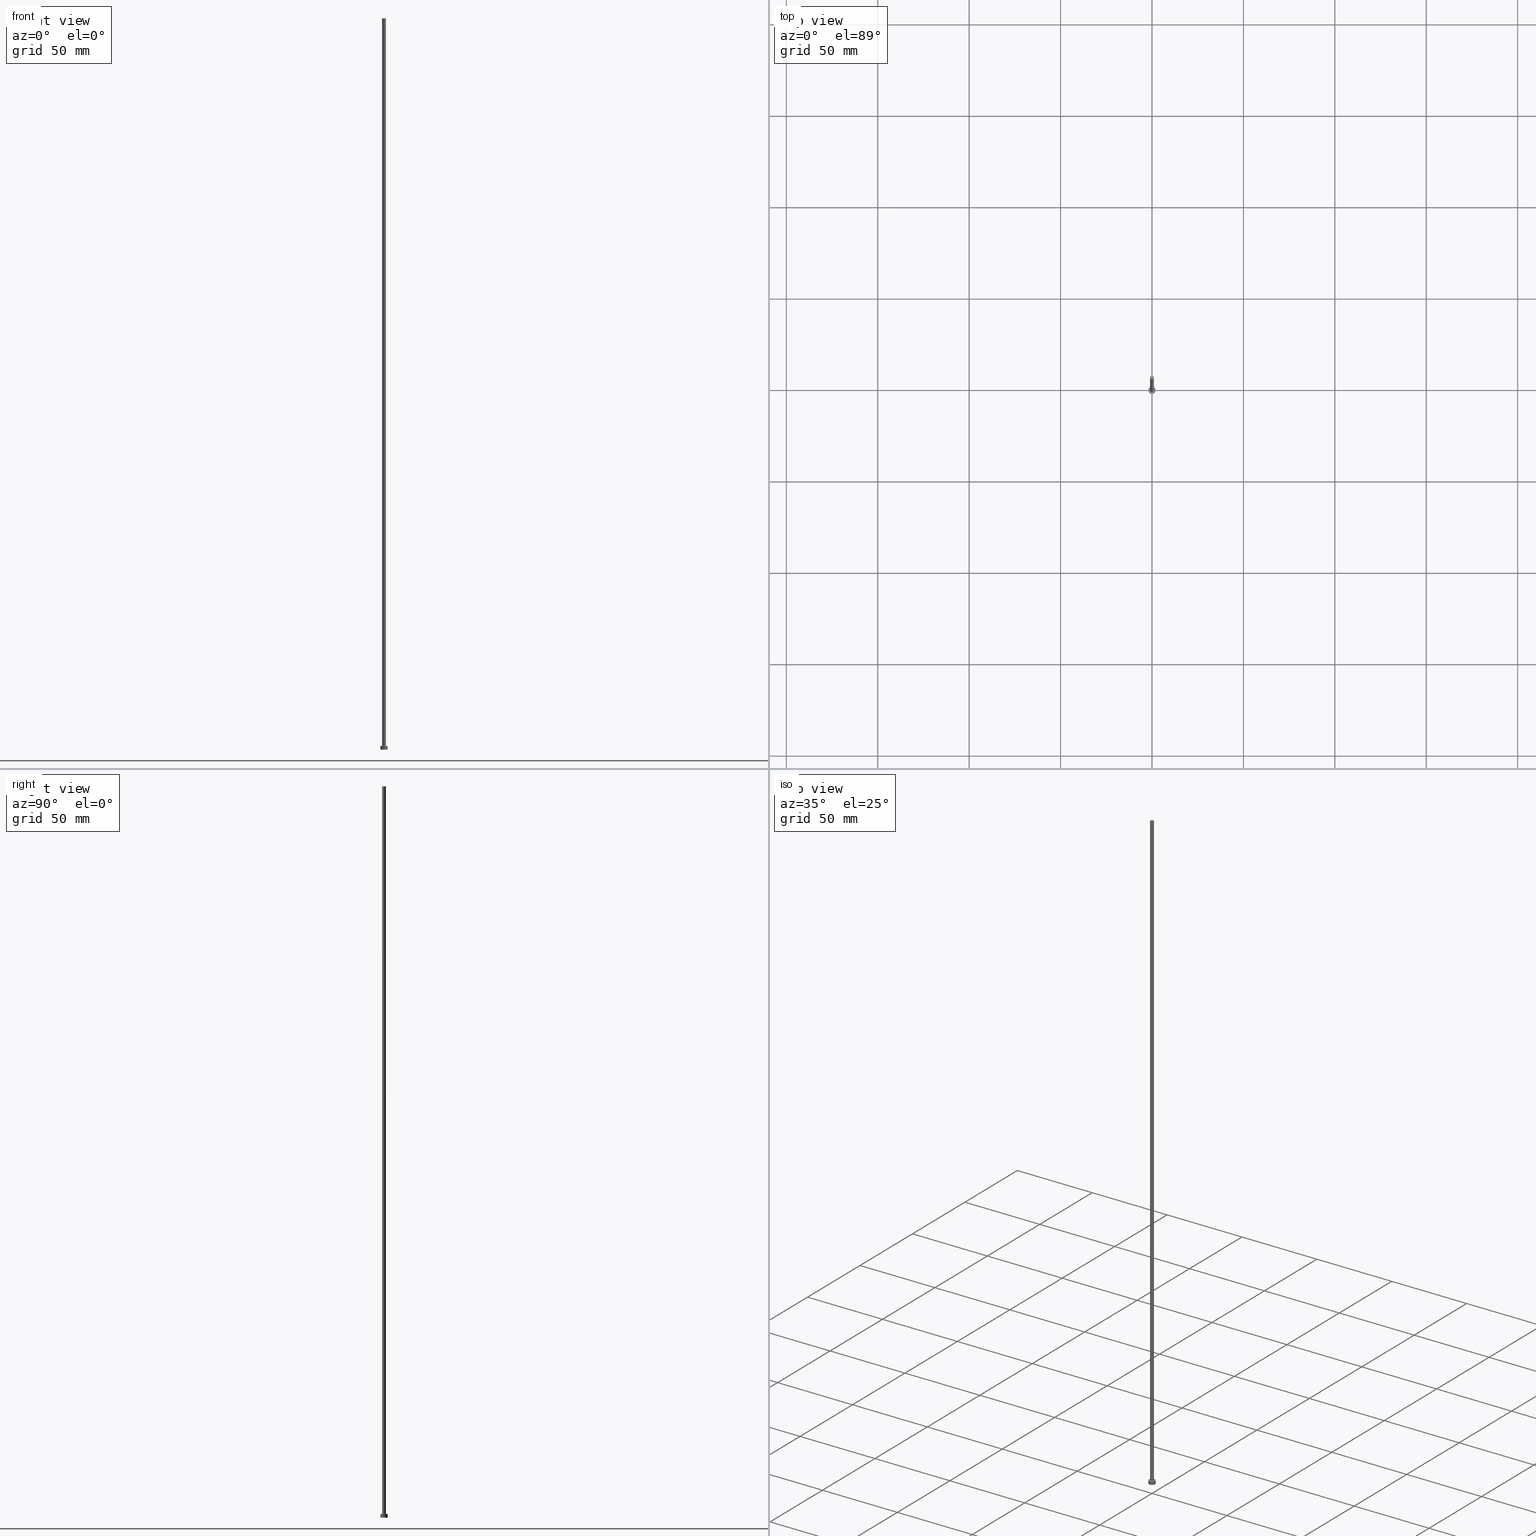
[diagram: canonical four-view strip — front | top / right | iso, engineering-drawing reading convention]
A machine part, canonical four-view strip (front | top / right | iso — engineering-drawing reading convention). The complete STEP part file that produces these views, byte-faithful:
ISO-10303-21;
HEADER;
FILE_DESCRIPTION (( 'STEP AP203' ),
    '1' );
FILE_NAME ('0a33.STEP',
    '2023-02-13T17:07:04',
    ( '' ),
    ( '' ),
    'SwSTEP 2.0',
    'SolidWorks 2019',
    '' );
FILE_SCHEMA (( 'CONFIG_CONTROL_DESIGN' ));
ENDSEC;

DATA;
#1 = DIRECTION ( 'NONE',  ( 1.000000000000000000, 0.000000000000000000, 0.000000000000000000 ) ) ;
#2 = DIRECTION ( 'NONE',  ( -0.000000000000000000, -0.000000000000000000, -1.000000000000000000 ) ) ;
#3 = ADVANCED_FACE ( 'NONE', ( #193 ), #235, .T. ) ;
#4 = CARTESIAN_POINT ( 'NONE',  ( 0.000000000000000000, 0.000000000000000000, 400.0000000000000000 ) ) ;
#5 = EDGE_LOOP ( 'NONE', ( #170, #145 ) ) ;
#6 = CIRCLE ( 'NONE', #31, 2.000000000000000000 ) ;
#7 = DIRECTION ( 'NONE',  ( -1.000000000000000000, 0.000000000000000000, 0.000000000000000000 ) ) ;
#8 = CC_DESIGN_DATE_AND_TIME_ASSIGNMENT ( #48, #123, ( #79 ) ) ;
#9 = DIRECTION ( 'NONE',  ( 1.000000000000000000, 0.000000000000000000, 0.000000000000000000 ) ) ;
#10 = DIRECTION ( 'NONE',  ( 1.000000000000000000, 0.000000000000000000, -0.000000000000000000 ) ) ;
#11 = LINE ( 'NONE', #113, #233 ) ;
#12 = CALENDAR_DATE ( 2023, 13, 2 ) ;
#13 = VECTOR ( 'NONE', #236, 1000.000000000000000 ) ;
#14 = PRODUCT_DEFINITION_SHAPE ( 'NONE', 'NONE',  #79 ) ;
#15 = DATE_AND_TIME ( #33, #58 ) ;
#16 = COORDINATED_UNIVERSAL_TIME_OFFSET ( 1, 0, .AHEAD. ) ;
#17 = MECHANICAL_CONTEXT ( 'NONE', #19, 'mechanical' ) ;
#18 = AXIS2_PLACEMENT_3D ( 'NONE', #74, #115, #155 ) ;
#19 = APPLICATION_CONTEXT ( 'configuration controlled 3d designs of mechanical parts and assemblies' ) ;
#20 = DATE_TIME_ROLE ( 'classification_date' ) ;
#21 = DIRECTION ( 'NONE',  ( 0.000000000000000000, 0.000000000000000000, 1.000000000000000000 ) ) ;
#22 = VERTEX_POINT ( 'NONE', #210 ) ;
#23 = VERTEX_POINT ( 'NONE', #53 ) ;
#24 = CC_DESIGN_APPROVAL ( #66, ( #206 ) ) ;
#25 = CYLINDRICAL_SURFACE ( 'NONE', #120, 1.000000000000000000 ) ;
#26 = CARTESIAN_POINT ( 'NONE',  ( 0.000000000000000000, 0.000000000000000000, 400.0000000000000000 ) ) ;
#27 = LOCAL_TIME ( 18, 7, 4.000000000000000000, #107 ) ;
#28 =( LENGTH_UNIT ( ) NAMED_UNIT ( * ) SI_UNIT ( .MILLI., .METRE. ) );
#29 = FACE_OUTER_BOUND ( 'NONE', #202, .T. ) ;
#30 = CC_DESIGN_PERSON_AND_ORGANIZATION_ASSIGNMENT ( #160, #165, ( #79 ) ) ;
#31 = AXIS2_PLACEMENT_3D ( 'NONE', #176, #153, #137 ) ;
#32 = DIRECTION ( 'NONE',  ( 0.000000000000000000, 0.000000000000000000, 1.000000000000000000 ) ) ;
#33 = CALENDAR_DATE ( 2023, 13, 2 ) ;
#34 = DIRECTION ( 'NONE',  ( 1.000000000000000000, 0.000000000000000000, 0.000000000000000000 ) ) ;
#35 = EDGE_CURVE ( 'NONE', #22, #201, #199, .T. ) ;
#36 = ORIENTED_EDGE ( 'NONE', *, *, #183, .F. ) ;
#37 = LINE ( 'NONE', #172, #13 ) ;
#38 = DATE_AND_TIME ( #93, #109 ) ;
#39 = CARTESIAN_POINT ( 'NONE',  ( 0.000000000000000000, 0.000000000000000000, 2.000000000000000000 ) ) ;
#40 = DIRECTION ( 'NONE',  ( -1.000000000000000000, 0.000000000000000000, 0.000000000000000000 ) ) ;
#41 = CARTESIAN_POINT ( 'NONE',  ( 0.000000000000000000, 0.000000000000000000, 0.000000000000000000 ) ) ;
#42 = AXIS2_PLACEMENT_3D ( 'NONE', #62, #119, #203 ) ;
#43 = VERTEX_POINT ( 'NONE', #133 ) ;
#44 = CARTESIAN_POINT ( 'NONE',  ( 0.000000000000000000, 0.000000000000000000, 0.000000000000000000 ) ) ;
#45 = APPROVAL ( #84, 'NEUR�EN�' ) ;
#46 = FACE_OUTER_BOUND ( 'NONE', #108, .T. ) ;
#47 = FACE_OUTER_BOUND ( 'NONE', #116, .T. ) ;
#48 = DATE_AND_TIME ( #166, #52 ) ;
#49 = DIRECTION ( 'NONE',  ( 1.000000000000000000, 0.000000000000000000, 0.000000000000000000 ) ) ;
#50 = MANIFOLD_SOLID_BREP ( 'P�idat vysunut�m3', #83 ) ;
#51 = CIRCLE ( 'NONE', #184, 1.000000000000000000 ) ;
#52 = LOCAL_TIME ( 18, 7, 4.000000000000000000, #105 ) ;
#53 = CARTESIAN_POINT ( 'NONE',  ( -1.000000000000000000, 0.000000000000000000, 2.000000000000000000 ) ) ;
#54 = ADVANCED_FACE ( 'NONE', ( #227, #47 ), #168, .T. ) ;
#55 = PERSON_AND_ORGANIZATION_ROLE ( 'design_supplier' ) ;
#56 = DIRECTION ( 'NONE',  ( -0.000000000000000000, -0.000000000000000000, -1.000000000000000000 ) ) ;
#57 = AXIS2_PLACEMENT_3D ( 'NONE', #26, #157, #40 ) ;
#58 = LOCAL_TIME ( 18, 7, 4.000000000000000000, #211 ) ;
#59 = APPROVAL ( #248, 'NEUR�EN�' ) ;
#60 = DIRECTION ( 'NONE',  ( 0.000000000000000000, 0.000000000000000000, 1.000000000000000000 ) ) ;
#61 = EDGE_LOOP ( 'NONE', ( #36, #217 ) ) ;
#62 = CARTESIAN_POINT ( 'NONE',  ( 0.000000000000000000, 0.000000000000000000, 2.000000000000000000 ) ) ;
#63 = PERSON_AND_ORGANIZATION ( #251, #246 ) ;
#64 = AXIS2_PLACEMENT_3D ( 'NONE', #218, #2, #215 ) ;
#65 = SECURITY_CLASSIFICATION ( '', '', #216 ) ;
#66 = APPROVAL ( #163, 'NEUR�EN�' ) ;
#67 = ORIENTED_EDGE ( 'NONE', *, *, #230, .F. ) ;
#68 = CARTESIAN_POINT ( 'NONE',  ( 0.000000000000000000, 0.000000000000000000, 400.0000000000000000 ) ) ;
#69 = ORIENTED_EDGE ( 'NONE', *, *, #114, .F. ) ;
#70 = PERSON_AND_ORGANIZATION_ROLE ( 'creator' ) ;
#71 = AXIS2_PLACEMENT_3D ( 'NONE', #87, #196, #208 ) ;
#72 = DIRECTION ( 'NONE',  ( 0.000000000000000000, 0.000000000000000000, 1.000000000000000000 ) ) ;
#73 = LINE ( 'NONE', #237, #181 ) ;
#74 = CARTESIAN_POINT ( 'NONE',  ( 0.000000000000000000, 0.000000000000000000, 2.000000000000000000 ) ) ;
#75 = VERTEX_POINT ( 'NONE', #182 ) ;
#76 = EDGE_CURVE ( 'NONE', #254, #75, #11, .T. ) ;
#77 = AXIS2_PLACEMENT_3D ( 'NONE', #111, #72, #154 ) ;
#78 = CARTESIAN_POINT ( 'NONE',  ( -1.000000000000000000, 0.000000000000000000, 400.0000000000000000 ) ) ;
#79 = PRODUCT_DEFINITION ( 'NEZN�M�', '', #206, #132 ) ;
#80 = CYLINDRICAL_SURFACE ( 'NONE', #42, 2.000000000000000000 ) ;
#81 =( NAMED_UNIT ( * ) PLANE_ANGLE_UNIT ( ) SI_UNIT ( $, .RADIAN. ) );
#82 = APPROVAL_ROLE ( '' ) ;
#83 = CLOSED_SHELL ( 'NONE', ( #138, #169, #194, #54, #252, #106, #3 ) ) ;
#84 = APPROVAL_STATUS ( 'not_yet_approved' ) ;
#85 = APPROVAL_DATE_TIME ( #228, #45 ) ;
#86 = AXIS2_PLACEMENT_3D ( 'NONE', #68, #150, #126 ) ;
#87 = CARTESIAN_POINT ( 'NONE',  ( 0.000000000000000000, 0.000000000000000000, 2.000000000000000000 ) ) ;
#88 = PRODUCT ( '0a33', '0a33', '', ( #17 ) ) ;
#89 = PERSON_AND_ORGANIZATION ( #251, #246 ) ;
#90 = EDGE_CURVE ( 'NONE', #22, #241, #73, .T. ) ;
#91 = CARTESIAN_POINT ( 'NONE',  ( -2.000000000000000000, 0.000000000000000000, 2.000000000000000000 ) ) ;
#92 = ORIENTED_EDGE ( 'NONE', *, *, #122, .T. ) ;
#93 = CALENDAR_DATE ( 2023, 13, 2 ) ;
#94 = DIRECTION ( 'NONE',  ( 0.000000000000000000, 0.000000000000000000, 1.000000000000000000 ) ) ;
#95 = ORIENTED_EDGE ( 'NONE', *, *, #230, .T. ) ;
#96 = APPROVAL_PERSON_ORGANIZATION ( #125, #66, #209 ) ;
#97 = DIRECTION ( 'NONE',  ( -0.000000000000000000, -0.000000000000000000, -1.000000000000000000 ) ) ;
#98 = CARTESIAN_POINT ( 'NONE',  ( 1.000000000000000000, 1.224646799147353207E-16, 400.0000000000000000 ) ) ;
#99 = ORIENTED_EDGE ( 'NONE', *, *, #207, .T. ) ;
#100 = ORIENTED_EDGE ( 'NONE', *, *, #121, .F. ) ;
#101 = APPLICATION_PROTOCOL_DEFINITION ( 'international standard', 'config_control_design', 1994, #19 ) ;
#102 = CC_DESIGN_PERSON_AND_ORGANIZATION_ASSIGNMENT ( #232, #55, ( #206 ) ) ;
#103 = APPLICATION_PROTOCOL_DEFINITION ( 'international standard', 'config_control_design', 1994, #242 ) ;
#104 =( GEOMETRIC_REPRESENTATION_CONTEXT ( 3 ) GLOBAL_UNCERTAINTY_ASSIGNED_CONTEXT ( ( #110 ) ) GLOBAL_UNIT_ASSIGNED_CONTEXT ( ( #28, #81, #142 ) ) REPRESENTATION_CONTEXT ( 'NONE', 'WORKASPACE' ) );
#105 = COORDINATED_UNIVERSAL_TIME_OFFSET ( 1, 0, .AHEAD. ) ;
#106 = ADVANCED_FACE ( 'NONE', ( #135 ), #25, .T. ) ;
#107 = COORDINATED_UNIVERSAL_TIME_OFFSET ( 1, 0, .AHEAD. ) ;
#108 = EDGE_LOOP ( 'NONE', ( #141, #100, #95, #92 ) ) ;
#109 = LOCAL_TIME ( 18, 7, 4.000000000000000000, #16 ) ;
#110 = UNCERTAINTY_MEASURE_WITH_UNIT (LENGTH_MEASURE( 1.000000000000000082E-05 ), #28, 'distance_accuracy_value', 'NONE');
#111 = CARTESIAN_POINT ( 'NONE',  ( 0.000000000000000000, 0.000000000000000000, 0.000000000000000000 ) ) ;
#112 = DATE_AND_TIME ( #239, #243 ) ;
#113 = CARTESIAN_POINT ( 'NONE',  ( 1.000000000000000000, 1.224646799147353207E-16, 400.0000000000000000 ) ) ;
#114 = EDGE_CURVE ( 'NONE', #254, #253, #226, .T. ) ;
#115 = DIRECTION ( 'NONE',  ( 0.000000000000000000, 0.000000000000000000, 1.000000000000000000 ) ) ;
#116 = EDGE_LOOP ( 'NONE', ( #177, #139 ) ) ;
#117 = ORIENTED_EDGE ( 'NONE', *, *, #90, .T. ) ;
#118 = EDGE_LOOP ( 'NONE', ( #69, #198, #99, #147 ) ) ;
#119 = DIRECTION ( 'NONE',  ( -0.000000000000000000, -0.000000000000000000, -1.000000000000000000 ) ) ;
#120 = AXIS2_PLACEMENT_3D ( 'NONE', #4, #97, #7 ) ;
#121 = EDGE_CURVE ( 'NONE', #201, #22, #167, .T. ) ;
#122 = EDGE_CURVE ( 'NONE', #43, #241, #6, .T. ) ;
#123 = DATE_TIME_ROLE ( 'creation_date' ) ;
#124 = VECTOR ( 'NONE', #175, 1000.000000000000000 ) ;
#125 = PERSON_AND_ORGANIZATION ( #251, #246 ) ;
#126 = DIRECTION ( 'NONE',  ( 1.000000000000000000, 0.000000000000000000, -0.000000000000000000 ) ) ;
#127 = COORDINATED_UNIVERSAL_TIME_OFFSET ( 1, 0, .AHEAD. ) ;
#128 = APPROVAL_PERSON_ORGANIZATION ( #187, #45, #82 ) ;
#129 = ORIENTED_EDGE ( 'NONE', *, *, #183, .T. ) ;
#130 = CYLINDRICAL_SURFACE ( 'NONE', #57, 1.000000000000000000 ) ;
#131 = ORIENTED_EDGE ( 'NONE', *, *, #159, .F. ) ;
#132 = DESIGN_CONTEXT ( 'detailed design', #242, 'design' ) ;
#133 = CARTESIAN_POINT ( 'NONE',  ( -2.000000000000000000, 0.000000000000000000, 0.000000000000000000 ) ) ;
#134 = APPROVAL_DATE_TIME ( #112, #66 ) ;
#135 = FACE_OUTER_BOUND ( 'NONE', #220, .T. ) ;
#136 = CC_DESIGN_SECURITY_CLASSIFICATION ( #65, ( #206 ) ) ;
#137 = DIRECTION ( 'NONE',  ( 1.000000000000000000, 0.000000000000000000, 0.000000000000000000 ) ) ;
#138 = ADVANCED_FACE ( 'NONE', ( #219 ), #130, .T. ) ;
#139 = ORIENTED_EDGE ( 'NONE', *, *, #35, .T. ) ;
#140 = AXIS2_PLACEMENT_3D ( 'NONE', #44, #32, #34 ) ;
#141 = ORIENTED_EDGE ( 'NONE', *, *, #90, .F. ) ;
#142 =( NAMED_UNIT ( * ) SI_UNIT ( $, .STERADIAN. ) SOLID_ANGLE_UNIT ( ) );
#143 = AXIS2_PLACEMENT_3D ( 'NONE', #213, #60, #9 ) ;
#144 = ADVANCED_BREP_SHAPE_REPRESENTATION ( '0a33', ( #50, #140 ), #104 ) ;
#145 = ORIENTED_EDGE ( 'NONE', *, *, #164, .F. ) ;
#146 = SHAPE_DEFINITION_REPRESENTATION ( #14, #144 ) ;
#147 = ORIENTED_EDGE ( 'NONE', *, *, #149, .F. ) ;
#148 = APPROVAL_DATE_TIME ( #38, #59 ) ;
#149 = EDGE_CURVE ( 'NONE', #253, #23, #37, .T. ) ;
#150 = DIRECTION ( 'NONE',  ( 0.000000000000000000, 0.000000000000000000, 1.000000000000000000 ) ) ;
#151 = ORIENTED_EDGE ( 'NONE', *, *, #35, .F. ) ;
#152 = FACE_OUTER_BOUND ( 'NONE', #5, .T. ) ;
#153 = DIRECTION ( 'NONE',  ( 0.000000000000000000, 0.000000000000000000, 1.000000000000000000 ) ) ;
#154 = DIRECTION ( 'NONE',  ( 1.000000000000000000, 0.000000000000000000, -0.000000000000000000 ) ) ;
#155 = DIRECTION ( 'NONE',  ( 1.000000000000000000, 0.000000000000000000, 0.000000000000000000 ) ) ;
#156 = ORIENTED_EDGE ( 'NONE', *, *, #76, .F. ) ;
#157 = DIRECTION ( 'NONE',  ( -0.000000000000000000, -0.000000000000000000, -1.000000000000000000 ) ) ;
#158 = ORIENTED_EDGE ( 'NONE', *, *, #114, .T. ) ;
#159 = EDGE_CURVE ( 'NONE', #253, #254, #204, .T. ) ;
#160 = PERSON_AND_ORGANIZATION ( #251, #246 ) ;
#161 = CIRCLE ( 'NONE', #190, 1.000000000000000000 ) ;
#162 = CC_DESIGN_APPROVAL ( #45, ( #79 ) ) ;
#163 = APPROVAL_STATUS ( 'not_yet_approved' ) ;
#164 = EDGE_CURVE ( 'NONE', #241, #43, #222, .T. ) ;
#165 = PERSON_AND_ORGANIZATION_ROLE ( 'creator' ) ;
#166 = CALENDAR_DATE ( 2023, 13, 2 ) ;
#167 = CIRCLE ( 'NONE', #18, 2.000000000000000000 ) ;
#168 = PLANE ( 'NONE',  #173 ) ;
#169 = ADVANCED_FACE ( 'NONE', ( #29 ), #80, .T. ) ;
#170 = ORIENTED_EDGE ( 'NONE', *, *, #122, .F. ) ;
#171 = CARTESIAN_POINT ( 'NONE',  ( 2.000000000000000000, 2.449293598294706414E-16, 0.000000000000000000 ) ) ;
#172 = CARTESIAN_POINT ( 'NONE',  ( -1.000000000000000000, 0.000000000000000000, 400.0000000000000000 ) ) ;
#173 = AXIS2_PLACEMENT_3D ( 'NONE', #229, #212, #10 ) ;
#174 = DIRECTION ( 'NONE',  ( -0.000000000000000000, -0.000000000000000000, -1.000000000000000000 ) ) ;
#175 = DIRECTION ( 'NONE',  ( -0.000000000000000000, -0.000000000000000000, -1.000000000000000000 ) ) ;
#176 = CARTESIAN_POINT ( 'NONE',  ( 0.000000000000000000, 0.000000000000000000, 0.000000000000000000 ) ) ;
#177 = ORIENTED_EDGE ( 'NONE', *, *, #121, .T. ) ;
#178 = DIRECTION ( 'NONE',  ( 0.000000000000000000, 0.000000000000000000, 1.000000000000000000 ) ) ;
#179 = PRODUCT_RELATED_PRODUCT_CATEGORY ( 'detail', '', ( #88 ) ) ;
#180 = ORIENTED_EDGE ( 'NONE', *, *, #149, .T. ) ;
#181 = VECTOR ( 'NONE', #56, 1000.000000000000000 ) ;
#182 = CARTESIAN_POINT ( 'NONE',  ( 1.000000000000000000, 1.224646799147353207E-16, 2.000000000000000000 ) ) ;
#183 = EDGE_CURVE ( 'NONE', #23, #75, #161, .T. ) ;
#184 = AXIS2_PLACEMENT_3D ( 'NONE', #195, #178, #49 ) ;
#185 = CC_DESIGN_APPROVAL ( #59, ( #65 ) ) ;
#186 = APPROVAL_ROLE ( '' ) ;
#187 = PERSON_AND_ORGANIZATION ( #251, #246 ) ;
#188 = CC_DESIGN_PERSON_AND_ORGANIZATION_ASSIGNMENT ( #255, #189, ( #65 ) ) ;
#189 = PERSON_AND_ORGANIZATION_ROLE ( 'classification_officer' ) ;
#190 = AXIS2_PLACEMENT_3D ( 'NONE', #39, #94, #225 ) ;
#191 = ORIENTED_EDGE ( 'NONE', *, *, #164, .T. ) ;
#192 = LINE ( 'NONE', #91, #124 ) ;
#193 = FACE_OUTER_BOUND ( 'NONE', #223, .T. ) ;
#194 = ADVANCED_FACE ( 'NONE', ( #46 ), #240, .T. ) ;
#195 = CARTESIAN_POINT ( 'NONE',  ( 0.000000000000000000, 0.000000000000000000, 2.000000000000000000 ) ) ;
#196 = DIRECTION ( 'NONE',  ( 0.000000000000000000, 0.000000000000000000, 1.000000000000000000 ) ) ;
#197 = CARTESIAN_POINT ( 'NONE',  ( -2.000000000000000000, 0.000000000000000000, 2.000000000000000000 ) ) ;
#198 = ORIENTED_EDGE ( 'NONE', *, *, #76, .T. ) ;
#199 = CIRCLE ( 'NONE', #71, 2.000000000000000000 ) ;
#200 = DIRECTION ( 'NONE',  ( 1.000000000000000000, 0.000000000000000000, 0.000000000000000000 ) ) ;
#201 = VERTEX_POINT ( 'NONE', #197 ) ;
#202 = EDGE_LOOP ( 'NONE', ( #151, #117, #191, #67 ) ) ;
#203 = DIRECTION ( 'NONE',  ( -1.000000000000000000, 0.000000000000000000, 0.000000000000000000 ) ) ;
#204 = CIRCLE ( 'NONE', #143, 1.000000000000000000 ) ;
#205 = CC_DESIGN_PERSON_AND_ORGANIZATION_ASSIGNMENT ( #214, #70, ( #206 ) ) ;
#206 = PRODUCT_DEFINITION_FORMATION_WITH_SPECIFIED_SOURCE ( 'LIBOVOLN�', '', #88, .NOT_KNOWN. ) ;
#207 = EDGE_CURVE ( 'NONE', #75, #23, #51, .T. ) ;
#208 = DIRECTION ( 'NONE',  ( 1.000000000000000000, 0.000000000000000000, 0.000000000000000000 ) ) ;
#209 = APPROVAL_ROLE ( '' ) ;
#210 = CARTESIAN_POINT ( 'NONE',  ( 2.000000000000000000, 2.449293598294706414E-16, 2.000000000000000000 ) ) ;
#211 = COORDINATED_UNIVERSAL_TIME_OFFSET ( 1, 0, .AHEAD. ) ;
#212 = DIRECTION ( 'NONE',  ( 0.000000000000000000, 0.000000000000000000, 1.000000000000000000 ) ) ;
#213 = CARTESIAN_POINT ( 'NONE',  ( 0.000000000000000000, 0.000000000000000000, 400.0000000000000000 ) ) ;
#214 = PERSON_AND_ORGANIZATION ( #251, #246 ) ;
#215 = DIRECTION ( 'NONE',  ( -1.000000000000000000, 0.000000000000000000, 0.000000000000000000 ) ) ;
#216 = SECURITY_CLASSIFICATION_LEVEL ( 'unclassified' ) ;
#217 = ORIENTED_EDGE ( 'NONE', *, *, #207, .F. ) ;
#218 = CARTESIAN_POINT ( 'NONE',  ( 0.000000000000000000, 0.000000000000000000, 2.000000000000000000 ) ) ;
#219 = FACE_OUTER_BOUND ( 'NONE', #118, .T. ) ;
#220 = EDGE_LOOP ( 'NONE', ( #156, #131, #180, #129 ) ) ;
#221 = CARTESIAN_POINT ( 'NONE',  ( 0.000000000000000000, 0.000000000000000000, 400.0000000000000000 ) ) ;
#222 = CIRCLE ( 'NONE', #224, 2.000000000000000000 ) ;
#223 = EDGE_LOOP ( 'NONE', ( #231, #158 ) ) ;
#224 = AXIS2_PLACEMENT_3D ( 'NONE', #41, #244, #200 ) ;
#225 = DIRECTION ( 'NONE',  ( 1.000000000000000000, 0.000000000000000000, 0.000000000000000000 ) ) ;
#226 = CIRCLE ( 'NONE', #247, 1.000000000000000000 ) ;
#227 = FACE_BOUND ( 'NONE', #61, .T. ) ;
#228 = DATE_AND_TIME ( #12, #27 ) ;
#229 = CARTESIAN_POINT ( 'NONE',  ( 0.000000000000000000, 0.000000000000000000, 2.000000000000000000 ) ) ;
#230 = EDGE_CURVE ( 'NONE', #201, #43, #192, .T. ) ;
#231 = ORIENTED_EDGE ( 'NONE', *, *, #159, .T. ) ;
#232 = PERSON_AND_ORGANIZATION ( #251, #246 ) ;
#233 = VECTOR ( 'NONE', #174, 1000.000000000000000 ) ;
#234 = PLANE ( 'NONE',  #77 ) ;
#235 = PLANE ( 'NONE',  #86 ) ;
#236 = DIRECTION ( 'NONE',  ( -0.000000000000000000, -0.000000000000000000, -1.000000000000000000 ) ) ;
#237 = CARTESIAN_POINT ( 'NONE',  ( 2.000000000000000000, 2.449293598294706414E-16, 2.000000000000000000 ) ) ;
#238 = CC_DESIGN_DATE_AND_TIME_ASSIGNMENT ( #15, #20, ( #65 ) ) ;
#239 = CALENDAR_DATE ( 2023, 13, 2 ) ;
#240 = CYLINDRICAL_SURFACE ( 'NONE', #64, 2.000000000000000000 ) ;
#241 = VERTEX_POINT ( 'NONE', #171 ) ;
#242 = APPLICATION_CONTEXT ( 'configuration controlled 3d designs of mechanical parts and assemblies' ) ;
#243 = LOCAL_TIME ( 18, 7, 4.000000000000000000, #127 ) ;
#244 = DIRECTION ( 'NONE',  ( 0.000000000000000000, 0.000000000000000000, 1.000000000000000000 ) ) ;
#245 = CC_DESIGN_PERSON_AND_ORGANIZATION_ASSIGNMENT ( #63, #249, ( #88 ) ) ;
#246 = ORGANIZATION ( 'NEUR�EN�', 'NEUR�EN�', '' ) ;
#247 = AXIS2_PLACEMENT_3D ( 'NONE', #221, #21, #1 ) ;
#248 = APPROVAL_STATUS ( 'not_yet_approved' ) ;
#249 = PERSON_AND_ORGANIZATION_ROLE ( 'design_owner' ) ;
#250 = APPROVAL_PERSON_ORGANIZATION ( #89, #59, #186 ) ;
#251 = PERSON ( 'NEUR�EN�', 'NEUR�EN�', 'NEUR�EN�', ('NEUR�EN�'), ('NEUR�EN�'), ('NEUR�EN�') ) ;
#252 = ADVANCED_FACE ( 'NONE', ( #152 ), #234, .F. ) ;
#253 = VERTEX_POINT ( 'NONE', #78 ) ;
#254 = VERTEX_POINT ( 'NONE', #98 ) ;
#255 = PERSON_AND_ORGANIZATION ( #251, #246 ) ;
ENDSEC;
END-ISO-10303-21;
